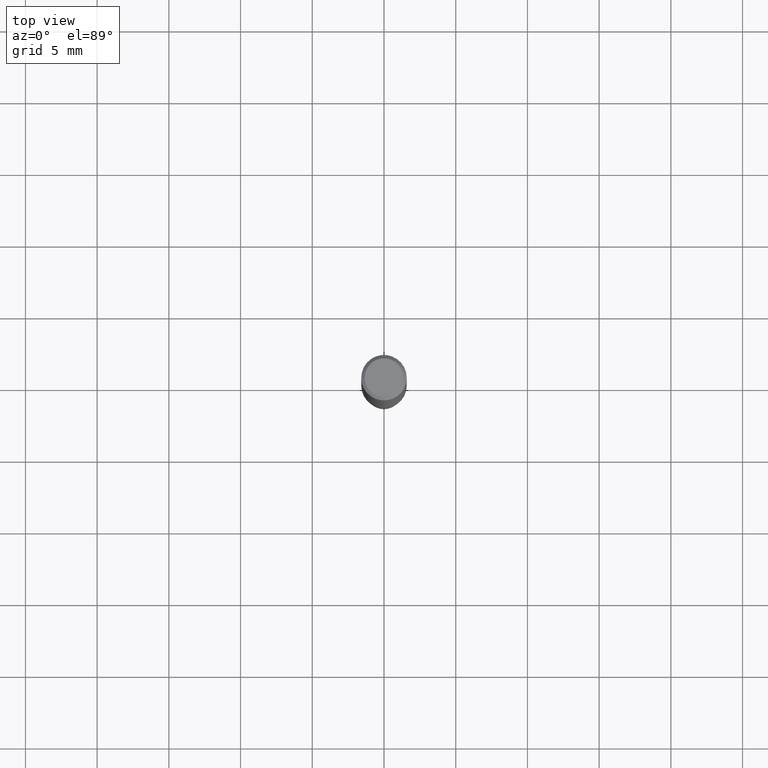
[diagram: clean part render]
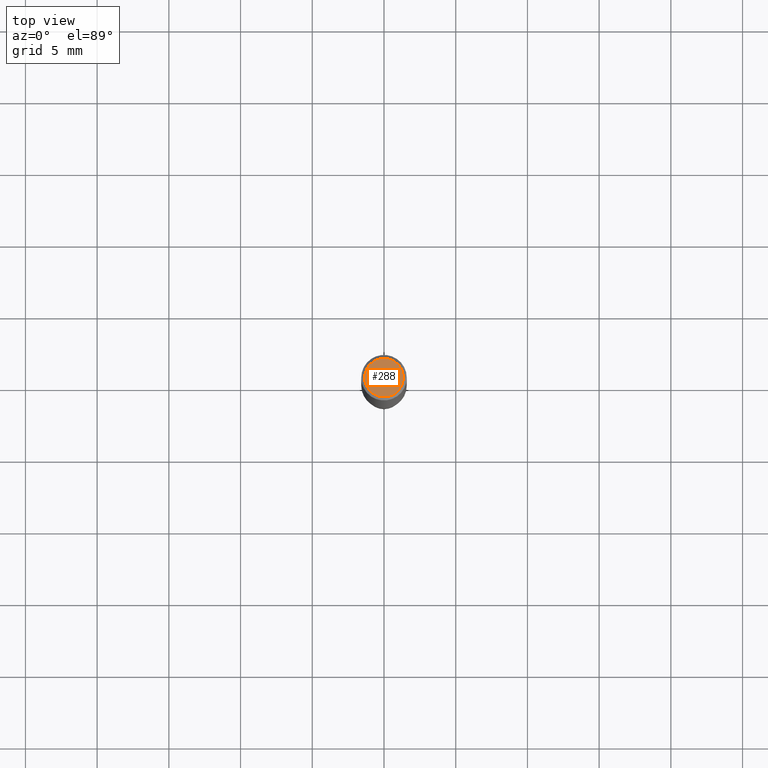
[diagram: same view with one face highlighted and labeled with its STEP entity id]
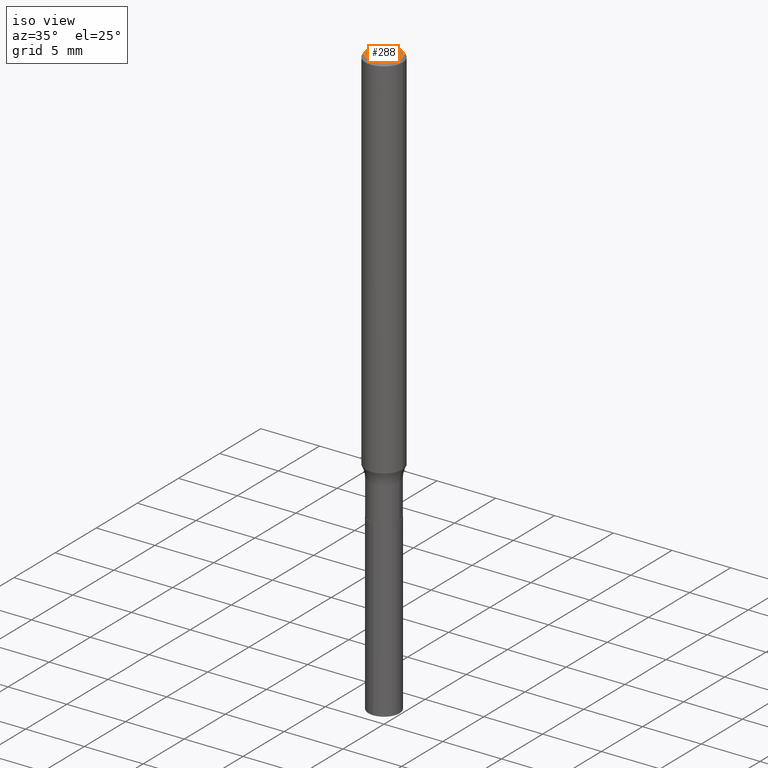
[diagram: same view with one face highlighted and labeled with its STEP entity id]
A machine part, top view. The second image highlights one B-rep face of the part: STEP entity #288.
A second angle (iso view) of the same face is appended — the face is thin or edge-on in the first view.
In plain terms, the highlighted planar face has unit normal (0, -0, -1).
Its self-contained STEP definition (entity closure, byte-faithful):
#27 = DIRECTION ( 'NONE',  ( -2.445468806185136597E-29, 3.491481338843145583E-15, 1.000000000000000000 ) ) ;
#30 = FACE_OUTER_BOUND ( 'NONE', #371, .T. ) ;
#41 = CIRCLE ( 'NONE', #229, 0.05312499999999999861 ) ;
#73 = PLANE ( 'NONE',  #386 ) ;
#104 = CARTESIAN_POINT ( 'NONE',  ( 0.05312499999999999861, -4.129888592719941322E-16, -3.903561672281913772E-17 ) ) ;
#135 = ORIENTED_EDGE ( 'NONE', *, *, #374, .T. ) ;
#148 = CIRCLE ( 'NONE', #434, 0.05312499999999999861 ) ;
#223 = CARTESIAN_POINT ( 'NONE',  ( 4.773019151292988932E-46, -6.814606366898300824E-32, -1.951780836141094012E-17 ) ) ;
#225 = CARTESIAN_POINT ( 'NONE',  ( 9.546038302585977863E-46, -1.362921273379660165E-31, -3.903561672282188024E-17 ) ) ;
#229 = AXIS2_PLACEMENT_3D ( 'NONE', #443, #408, #373 ) ;
#253 = ORIENTED_EDGE ( 'NONE', *, *, #463, .T. ) ;
#255 = CARTESIAN_POINT ( 'NONE',  ( -0.05312499999999999861, 3.873362110279098601E-16, -3.903561672282453649E-17 ) ) ;
#286 = VERTEX_POINT ( 'NONE', #255 ) ;
#288 = ADVANCED_FACE ( 'NONE', ( #30 ), #73, .F. ) ;
#306 = VERTEX_POINT ( 'NONE', #104 ) ;
#326 = DIRECTION ( 'NONE',  ( 2.438088387897960049E-29, -3.491481338843145188E-15, -1.000000000000000000 ) ) ;
#336 = DIRECTION ( 'NONE',  ( 1.000000000000000000, -6.982962677686266711E-15, 4.881282378734115390E-29 ) ) ;
#371 = EDGE_LOOP ( 'NONE', ( #253, #135 ) ) ;
#373 = DIRECTION ( 'NONE',  ( 1.000000000000000000, -6.982962677686266711E-15, 4.881282378734115390E-29 ) ) ;
#374 = EDGE_CURVE ( 'NONE', #306, #286, #148, .T. ) ;
#386 = AXIS2_PLACEMENT_3D ( 'NONE', #223, #326, #482 ) ;
#408 = DIRECTION ( 'NONE',  ( -2.445468806185136597E-29, 3.491481338843145583E-15, 1.000000000000000000 ) ) ;
#434 = AXIS2_PLACEMENT_3D ( 'NONE', #225, #27, #336 ) ;
#443 = CARTESIAN_POINT ( 'NONE',  ( 9.546038302585977863E-46, -1.362921273379660165E-31, -3.903561672282188024E-17 ) ) ;
#463 = EDGE_CURVE ( 'NONE', #286, #306, #41, .T. ) ;
#482 = DIRECTION ( 'NONE',  ( -1.000000000000000000, 6.982962677686265922E-15, -4.876176775795935793E-29 ) ) ;